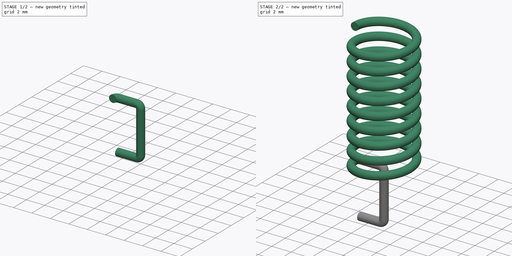
[diagram: build sequence overview — one tinted view per stage of 2, left to right]
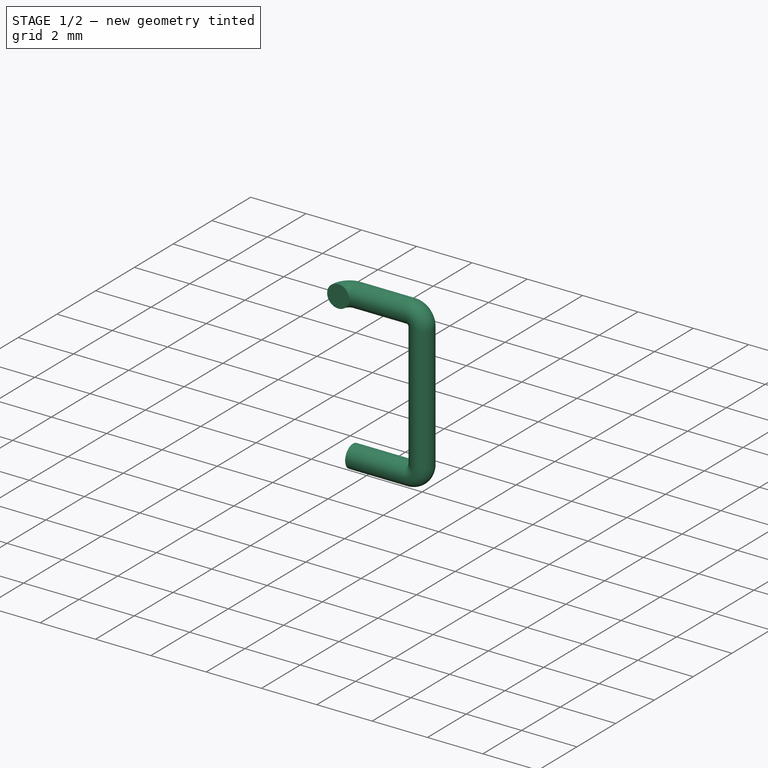
[diagram: stage 1 of 2 — iso view after this stage's code; geometry added in this stage tinted green]
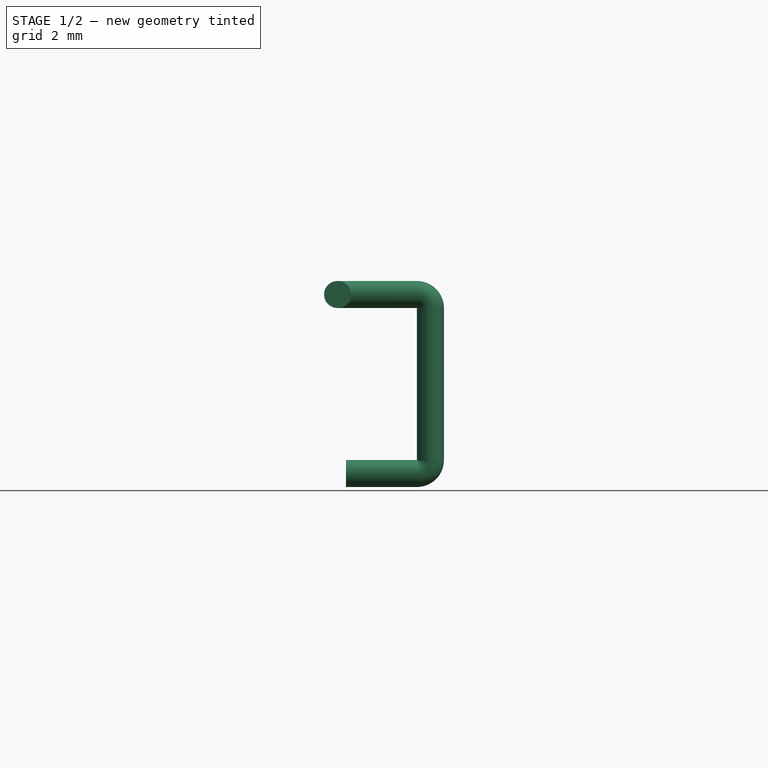
[diagram: stage 1 of 2 — front view after this stage's code; geometry added in this stage tinted green]
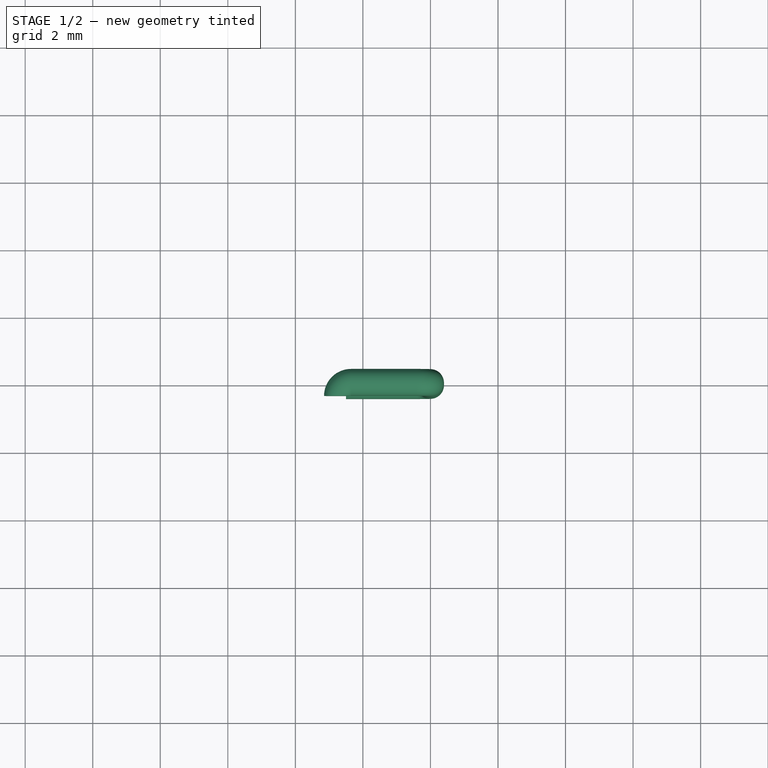
[diagram: stage 1 of 2 — top view after this stage's code; geometry added in this stage tinted green]
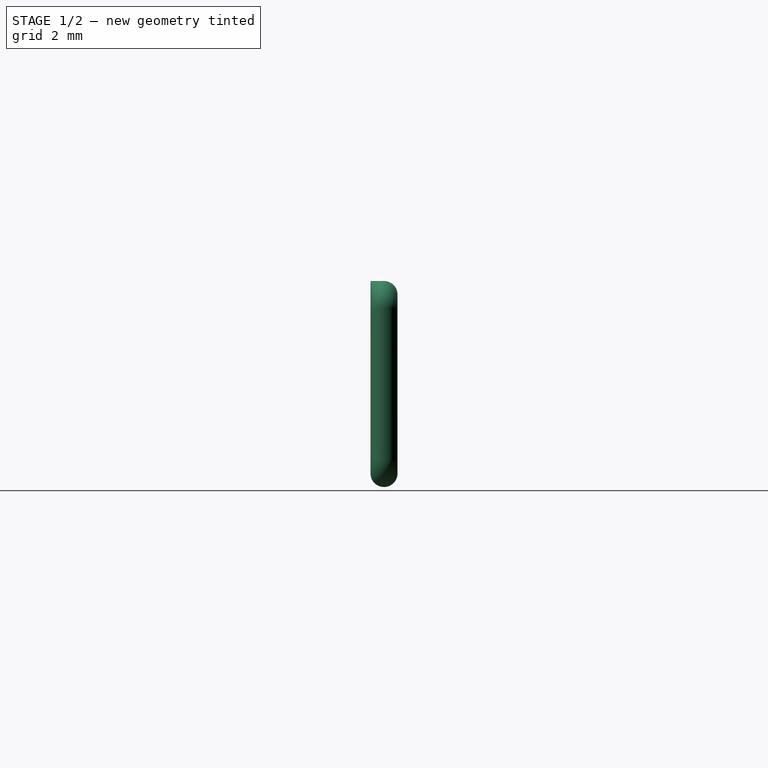
[diagram: stage 1 of 2 — right view after this stage's code; geometry added in this stage tinted green]
FCSTD DOCUMENT  (FreeCAD 0.21R33771 (Git))
Label: Antenna915MHzSimpleCoil
License: All rights reserved
LicenseURL: http://en.wikipedia.org/wiki/All_rights_reserved
objects: Sketcher::SketchObject×3, PartDesign::AdditivePipe×2, PartDesign::AdditiveHelix×1, PartDesign::Body×1
note: 10 computed .brp shape members not serialized (recipe doc carries the construction recipe); baked Part::Feature solids carry a one-line shape summary decoded from their .brp

FEATURE [Sketcher::SketchObject] Sketch  label="USketch"
  FullyConstrained = true
  MapMode = 5
  Placement = pos=(0,0,0) rot=(1,0,0;1.5708rad)
  Support = -> [XZ_Plane]
  sketch-geometry (7):
    g0: LineSegment StartX=-2.5 StartY=0 StartZ=0 EndX=-0.4 EndY=1e-16 EndZ=0
    g1: LineSegment StartX=0 StartY=0.4 StartZ=0 EndX=0 EndY=4.9 EndZ=0
    g2: LineSegment StartX=-0.4 StartY=5.3 StartZ=0 EndX=-1 EndY=5.3 EndZ=0
    g3: ArcOfCircle CenterX=-0.4 CenterY=4.9 CenterZ=0 NormalX=0 NormalY=0 NormalZ=1 AngleXU=0 Radius=0.4 StartAngle=-9e-16 EndAngle=1.5708
    g4: GeomPoint X=0 Y=5.3 Z=0
    g5: ArcOfCircle CenterX=-0.4 CenterY=0.4 CenterZ=0 NormalX=0 NormalY=0 NormalZ=1 AngleXU=0 Radius=0.4 StartAngle=4.71239 EndAngle=6.28319
    g6: GeomPoint X=0 Y=0 Z=0
  constraints (17):
    c: PointOnObject(g0,g-1)
    c: Coincident(g6,g-1)
    c: PointOnObject(g4,g-2)
    c: Horizontal(g2)
    c: DistanceX(g2,g4) = 1
    c: DistanceY(g6,g4) = 5.3
    c: DistanceX(g0,g6) = 2.5
    c: PointOnObject(g4,g2)
    c: PointOnObject(g4,g1)
    c: Tangent(g2,g3) = -1.5708
    c: Tangent(g1,g3) = -1.5708
    c: PointOnObject(g6,g1)
    c: PointOnObject(g6,g0)
    c: Tangent(g1,g5) = -1.5708
    c: Tangent(g0,g5) = -1.5708
    c: Radius(g3) = 0.4
    c: Radius(g5) = 0.4
FEATURE [Sketcher::SketchObject] Sketch001  label="C1Sketch"
  FullyConstrained = true
  MapMode = 1
  Placement = pos=(-2.5,0,0) rot=(0.57735,0.57735,0.57735;2.0944rad)
  Support = -> [Sketch]
  sketch-geometry (2):
    g0: Circle CenterX=0 CenterY=0 CenterZ=0 NormalX=0 NormalY=0 NormalZ=1 AngleXU=0 Radius=0.4
    g1: GeomPoint X=0 Y=0 Z=0
  constraints (3):
    c: Radius(g0) = 0.4
    c: Coincident(g0,g-1)
    c: Coincident(g1,g0)
FEATURE [Sketcher::SketchObject] Sketch002  label="JSketch"
  AttachmentOffset = pos=(0,0,5.3) rot=(0,0,1;0rad)
  ExternalGeometry = -> [Sketch]
  FullyConstrained = true
  MapMode = 5
  Placement = pos=(0,0,5.3) rot=(0,0,1;0rad)
  Support = -> [XY_Plane]
  sketch-geometry (2):
    g0: LineSegment StartX=-1 StartY=0 StartZ=0 EndX=-2.35 EndY=0 EndZ=0
    g1: ArcOfCircle CenterX=-2.35 CenterY=-0.4 CenterZ=0 NormalX=0 NormalY=0 NormalZ=1 AngleXU=0 Radius=0.4 StartAngle=1.5708 EndAngle=3.14159
  constraints (7):
    c: Coincident(g0,g-3)
    c: PointOnObject(g0,g-1)
    c: Coincident(g1,g0)
    c: Vertical(g1,g0)
    c: Horizontal(g1,g1)
    c: Radius(g1) = 0.4
    c: DistanceX(g1,g-1) = 2.75
FEATURE [PartDesign::AdditivePipe] AdditivePipe
  AuxilleryCurvelinear = true
  AuxillerySpineTangent = false
  Binormal = (0,0,0)
  Mode = 0
  Placement = pos=(0,0,0) rot=(1,0,0;1.5708rad)
  Profile = -> Sketch001
  Spine = -> Sketch
  SpineTangent = false
  Transformation = 0
  Transition = 0
FEATURE [PartDesign::AdditivePipe] AdditivePipe001
  AuxilleryCurvelinear = true
  AuxillerySpineTangent = false
  BaseFeature = -> AdditivePipe
  Binormal = (0,0,0)
  Mode = 0
  Placement = pos=(0,0,0) rot=(1,0,0;1.5708rad)
  Profile = -> AdditivePipe [Face7]
  Spine = -> Sketch002
  SpineTangent = false
  Transformation = 0
  Transition = 2
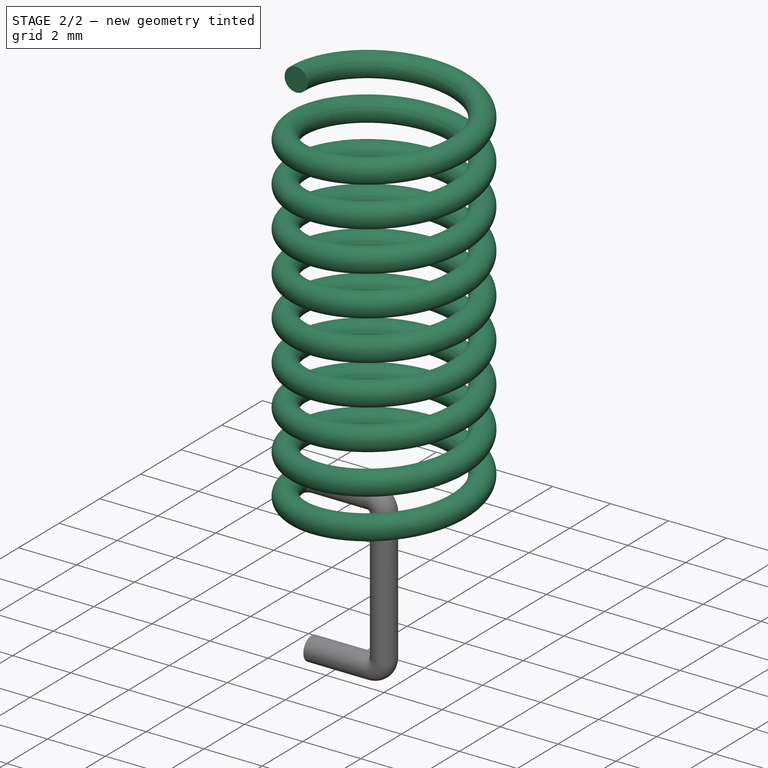
[diagram: stage 2 of 2 — iso view after this stage's code; geometry added in this stage tinted green]
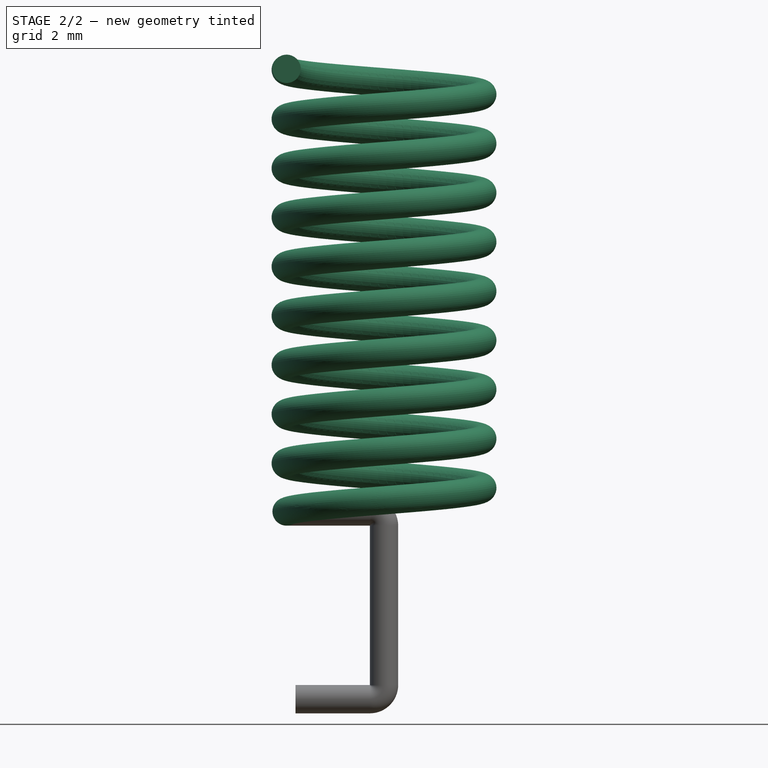
[diagram: stage 2 of 2 — front view after this stage's code; geometry added in this stage tinted green]
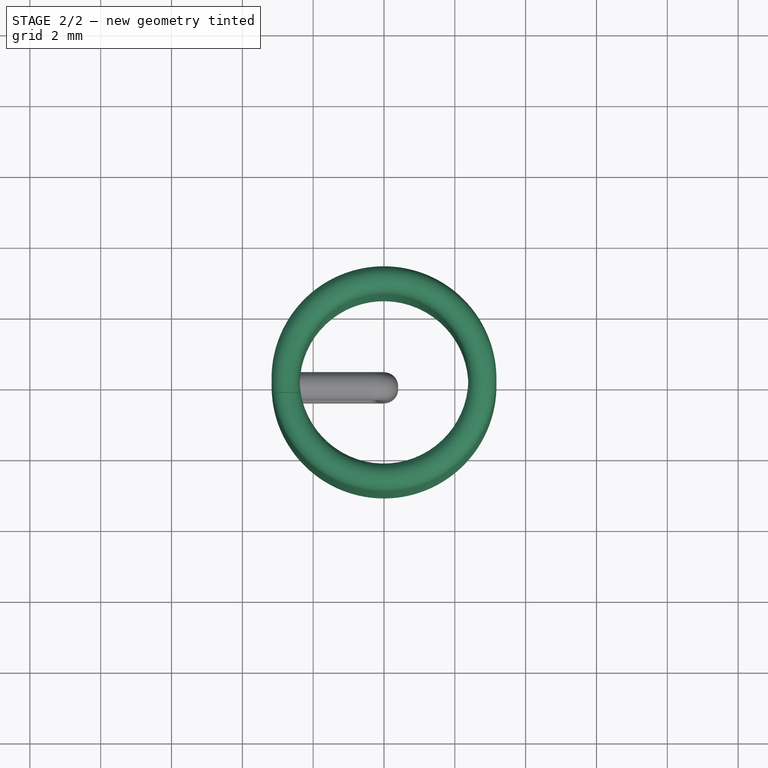
[diagram: stage 2 of 2 — top view after this stage's code; geometry added in this stage tinted green]
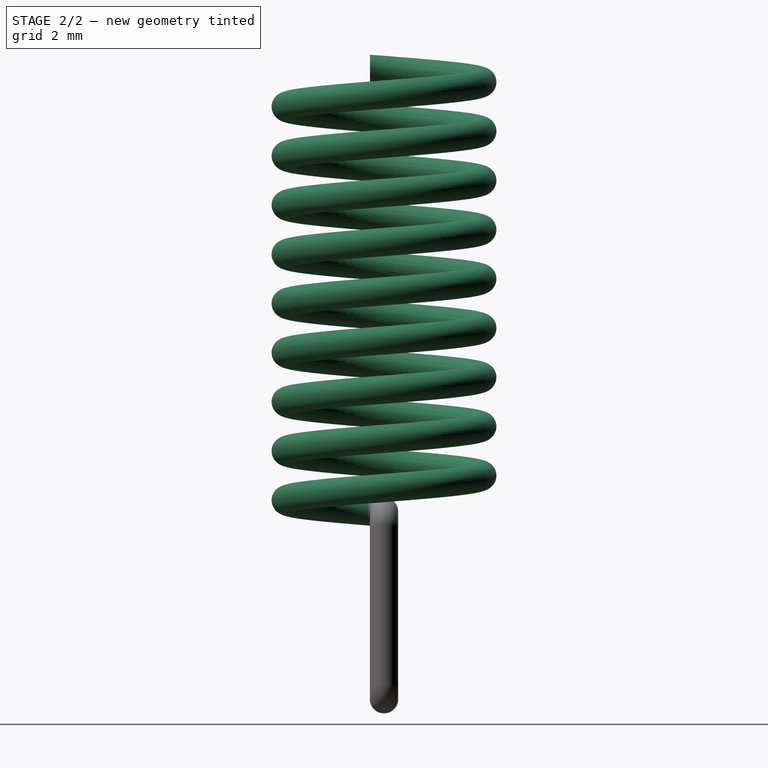
[diagram: stage 2 of 2 — right view after this stage's code; geometry added in this stage tinted green]
FEATURE [PartDesign::AdditiveHelix] AdditiveHelix
  Angle = 0
  Axis = (1e-16,1e-16,1)
  Base = (0,0,0)
  BaseFeature = -> AdditivePipe001
  Growth = 0
  HasBeenEdited = true
  Height = 12.5
  LeftHanded = false
  Mode = 2
  Outside = false
  Pitch = 1.38889
  Placement = pos=(0,0,0) rot=(1,0,0;1.5708rad)
  Profile = -> AdditivePipe001 [Face9]
  ReferenceAxis = -> Z_Axis
  Turns = 9
FEATURE [PartDesign::Body] Body  label="Antenna915MHzSimpleCoil"
  Group = -> [Sketch,Sketch001,Sketch002,AdditivePipe,AdditivePipe001,AdditiveHelix]
  Origin = -> Origin
  Tip = -> AdditiveHelix
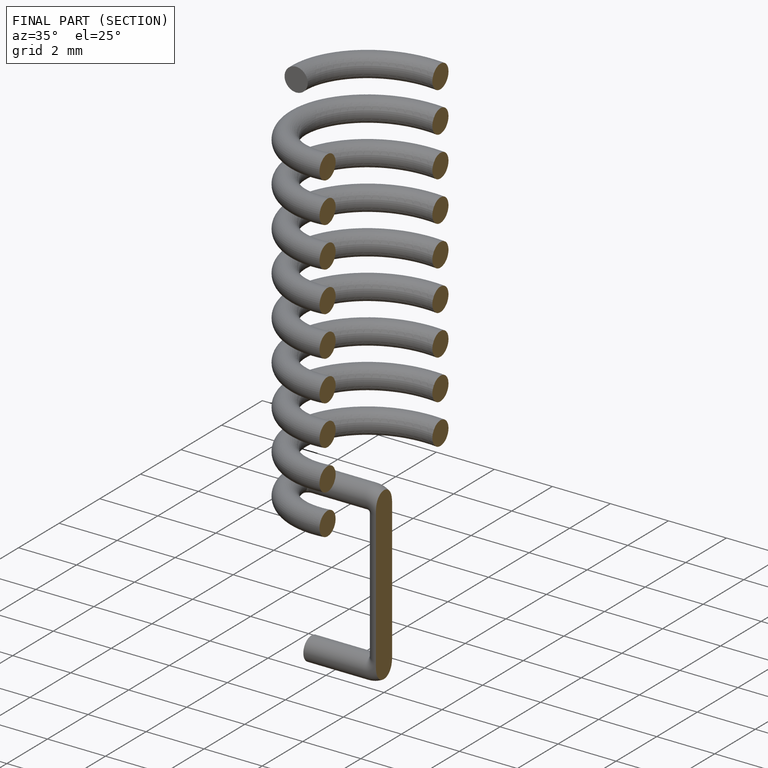
[diagram: finished part — half-section view (interior)]
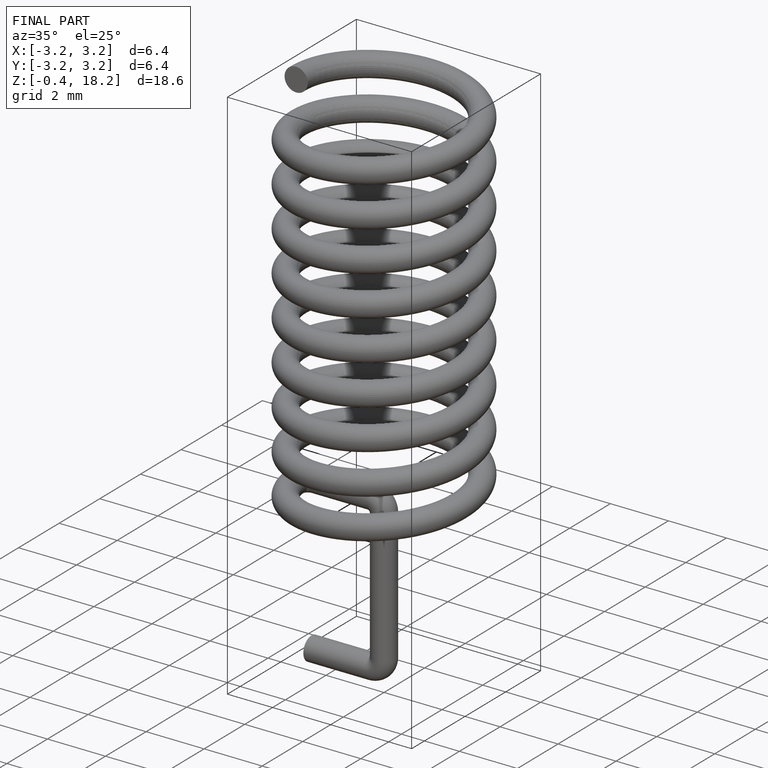
[diagram: finished part — iso view with bounding-box wireframe]
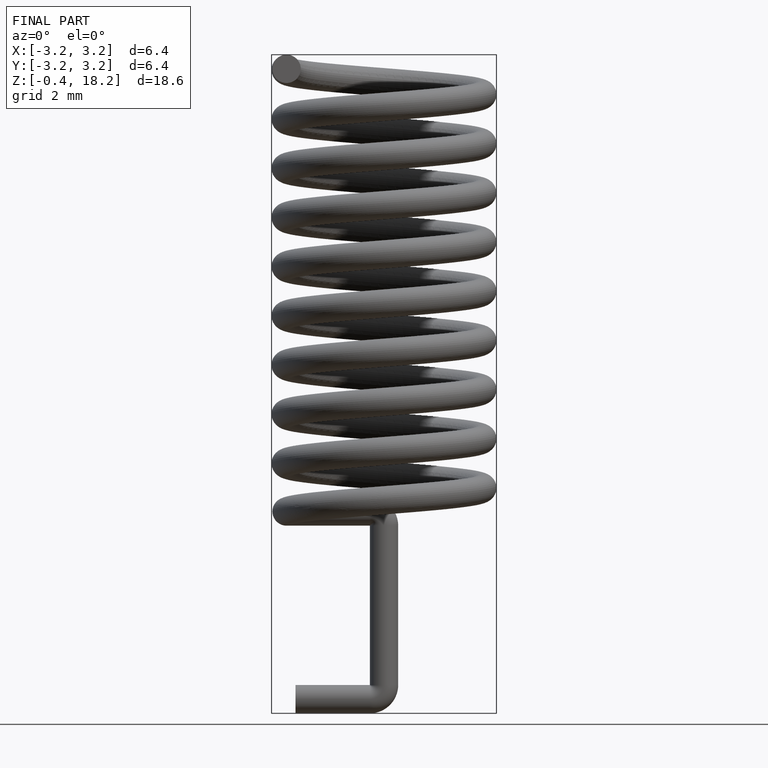
[diagram: finished part — front view with bounding-box wireframe]
